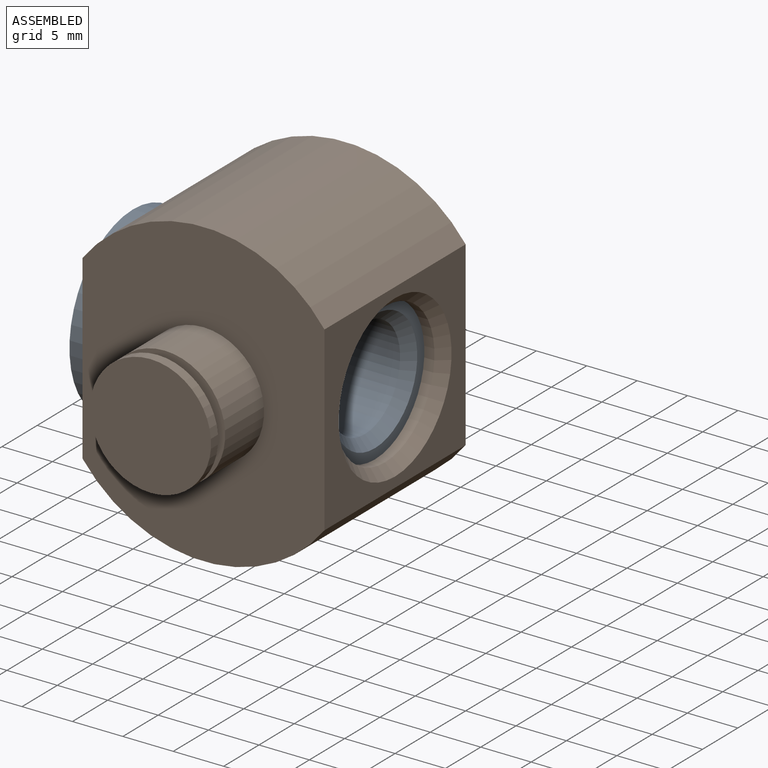
[diagram: assembled view]
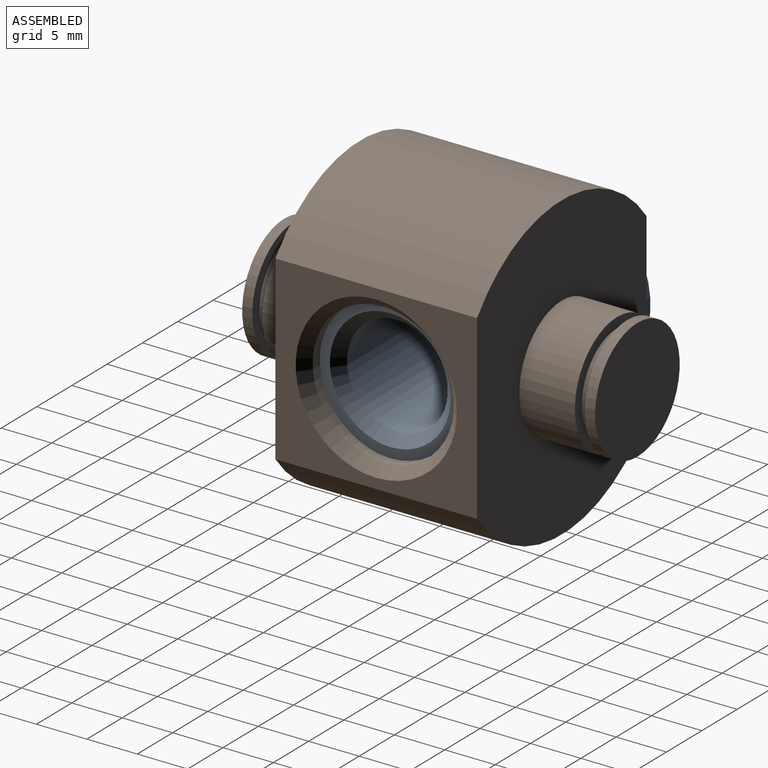
[diagram: assembled view, second angle]
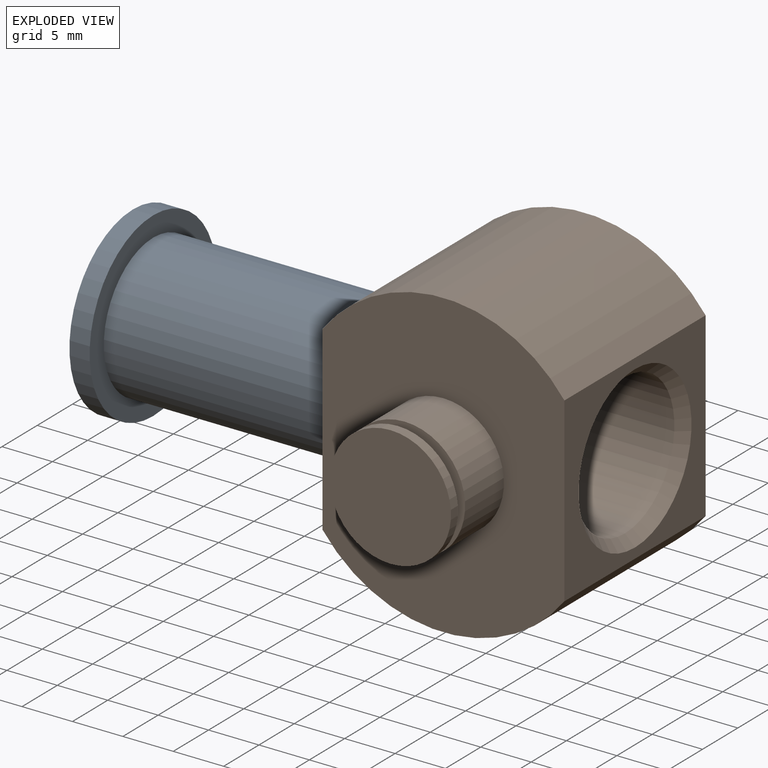
[diagram: exploded view]
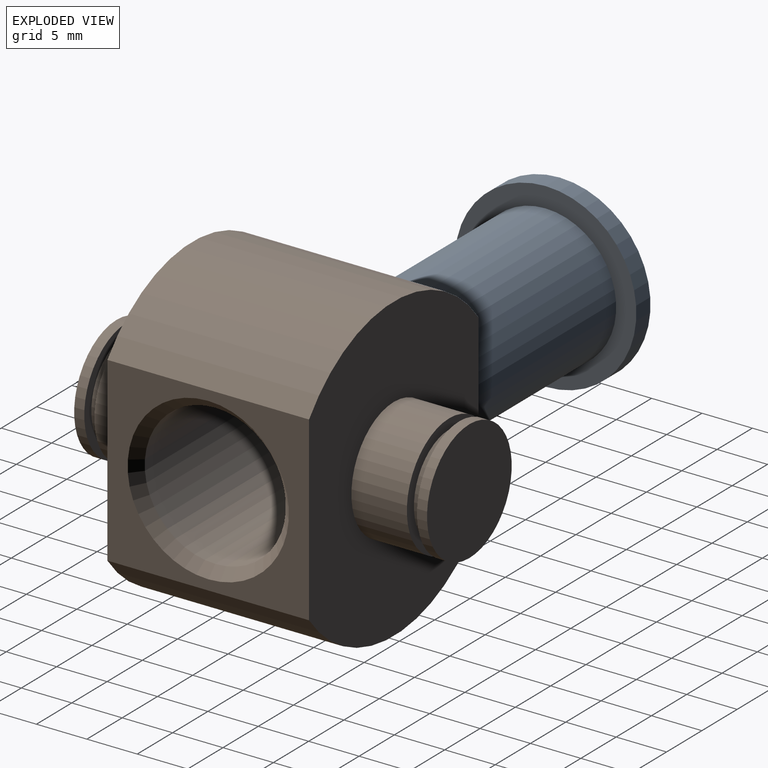
[diagram: exploded view, second angle]
ASSEMBLY  parts=2 mates=3
PART A: 7 faces, bbox 18x18x24 mm
  f0: plane 18x18mm, normal (0,0,1), area 175.9mm2, adj f1,f5
  f1: cylinder r=9mm len=18mm, axis (0,0,-1), area 113.1mm2, adj f0,f2
  f2: plane 18x18mm, normal (0,0,-1), area 100.5mm2, adj f1,f3
  f3: cylinder r=7mm len=22mm, axis (0,0,-1), area 967.6mm2, adj f2,f4
  f4: plane 14x14mm, normal (0,0,-1), area 40.8mm2, adj f3,f6
  f5: cylinder r=5mm len=23mm, axis (0,0,1), area 722.6mm2, adj f0,f6
  f6: cone r=6mm half-angle=45deg, axis (0,0,-1), area 48.9mm2, adj f4,f5
PART B: 21 faces, bbox 24x35x30 mm
  f0: cylinder r=15mm len=24mm, axis (0,1,0), area 556.4mm2, adj f1,f3,f4,f5
  f1: plane 20x18mm, normal (1,0,0), area 158.9mm2, adj f0,f2,f4,f5,f20
  f2: cylinder r=15mm len=24mm, axis (0,1,0), area 556.4mm2, adj f1,f3,f4,f5
  f3: plane 20x18mm, normal (-1,0,0), area 158.9mm2, adj f0,f2,f4,f5,f19
  f4: plane 30x24mm, normal (0,-1,0), area 520.2mm2, adj f0,f1,f2,f3,f7
  f5: plane 30x24mm, normal (0,1,0), area 520.2mm2, adj f0,f1,f2,f3,f13
  f6: plane 12x12mm, normal (0,-1,0), area 113.1mm2, adj f11
  f7: cylinder r=6mm len=12mm, axis (0,-1,0), area 207.3mm2, adj f4,f8
  f8: plane 12x12mm, normal (0,-1,0), area 34.6mm2, adj f7,f9
  f9: cylinder r=5mm len=10mm, axis (0,-1,0), area 31.4mm2, adj f8,f10
  f10: plane 12x12mm, normal (0,1,0), area 34.6mm2, adj f9,f11
  f11: cylinder r=6mm len=12mm, axis (0,-1,0), area 37.7mm2, adj f6,f10
  f12: plane 12x12mm, normal (0,1,0), area 34.6mm2, adj f13,f17
  f13: cylinder r=6mm len=12mm, axis (0,-1,0), area 207.3mm2, adj f5,f12
  f14: plane 12x12mm, normal (0,1,0), area 113.1mm2, adj f15
  f15: cylinder r=6mm len=12mm, axis (0,-1,0), area 37.7mm2, adj f14,f16
  f16: plane 12x12mm, normal (0,-1,0), area 34.6mm2, adj f15,f17
  f17: cylinder r=5mm len=10mm, axis (0,-1,0), area 31.4mm2, adj f12,f16
  f18: cylinder r=7mm len=22mm, axis (1,0,0), area 967.6mm2, adj f19,f20
  f19: cone r=8mm half-angle=45deg, axis (-1,0,0), area 66.6mm2, adj f3,f18
  f20: cone r=7mm half-angle=45deg, axis (1,0,0), area 66.6mm2, adj f1,f18
PLACE A rot(axis=(0,-1,0),90deg) t=(12,0,0)mm
PLACE B t=(2,0,0)mm
MATE planar B.f18 <-> A.f1  axis (-1,0,0) through (-10,0,0)mm
MATE parallel A.f1 <-> B.f18  axis (1,0,0) through (-10,0,0)mm
MATE cylindrical B.f18 <-> A.f1  axis (1,0,0) through (2,0,0)mm
